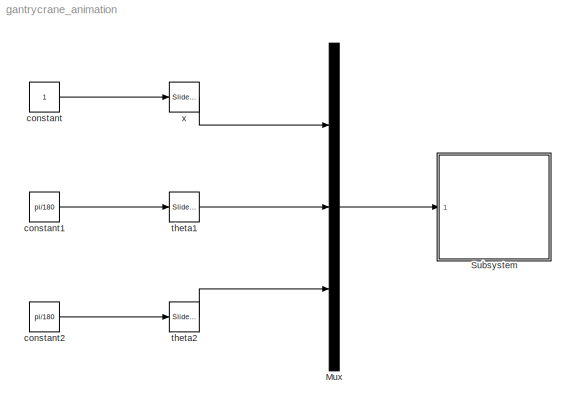
MODEL gantrycrane_animation
KIND model
BLOCK [Mux] Mux
  DisplayOption = bar
  Inputs = 3
  Ports = [3, 1]
  SID = 4
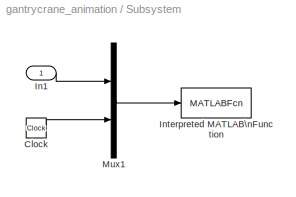
BLOCK [SubSystem] Subsystem
  FunctionWithSeparateData = off
  MaskDisplay = image(imread('tv.jpg'))
  MaskHideContents = off
  MaskIconFrame = on
  MaskIconOpaque = on
  MaskIconRotate = none
  MaskIconUnits = autoscale
  MaskInitialization = bar = 20;\ncrane = [5 3];\nL1 = 5;\nR1 = 1;\nL2 = 10;\nR2 = 0.5;
  MaskPortRotate = default
  MinAlgLoopOccurrences = off
  Opaque = off
  Ports = [1]
  PropExecContextOutsideSubsystem = off
  RTWSystemCode = Auto
  RequestExecContextInheritance = off
  SID = 11
BLOCK [Clock] Subsystem/Clock
  SID = 8
BLOCK [Inport] Subsystem/In1
  IconDisplay = Port number
  SID = 12
BLOCK [MATLABFcn] Subsystem/Interpreted MATLAB\nFunction
  MATLABFcn = drawGantryCrane(u,bar,crane,L1,R1,L2,R2)
  OutputDimensions = 0
  Ports = [1]
  SID = 10
  SampleTime = 0.1
BLOCK [Mux] Subsystem/Mux1
  DisplayOption = bar
  Inputs = 2
  Ports = [2, 1]
  SID = 9
BLOCK [Constant] constant
  SID = 1
BLOCK [Constant] constant1
  SID = 2
  Value = pi/180
BLOCK [Constant] constant2
  SID = 3
  Value = pi/180
BLOCK [Reference] theta1  REF=simulink/Math\nOperations/Slider\nGain
  Ports = [1, 1]
  SID = 6
  SourceBlock = simulink/Math\nOperations/Slider\nGain
  SourceType = Slider Gain
  gain = -7.2
  high = 90
  low = -90
BLOCK [Reference] theta2  REF=simulink/Math\nOperations/Slider\nGain
  Ports = [1, 1]
  SID = 7
  SourceBlock = simulink/Math\nOperations/Slider\nGain
  SourceType = Slider Gain
  gain = 1.5334
  high = 90
  low = -90
BLOCK [Reference] x  REF=simulink/Math\nOperations/Slider\nGain
  Ports = [1, 1]
  SID = 5
  SourceBlock = simulink/Math\nOperations/Slider\nGain
  SourceType = Slider Gain
  gain = -1.2296
  high = 10
  low = -10
LINE Mux:1 -> Subsystem:1
LINE Subsystem/Clock:1 -> Subsystem/Mux1:2
LINE Subsystem/In1:1 -> Subsystem/Mux1:1
LINE Subsystem/Mux1:1 -> Subsystem/Interpreted MATLAB\nFunction:1
LINE constant1:1 -> theta1:1
LINE constant2:1 -> theta2:1
LINE constant:1 -> x:1
LINE theta1:1 -> Mux:2
LINE theta2:1 -> Mux:3
LINE x:1 -> Mux:1
